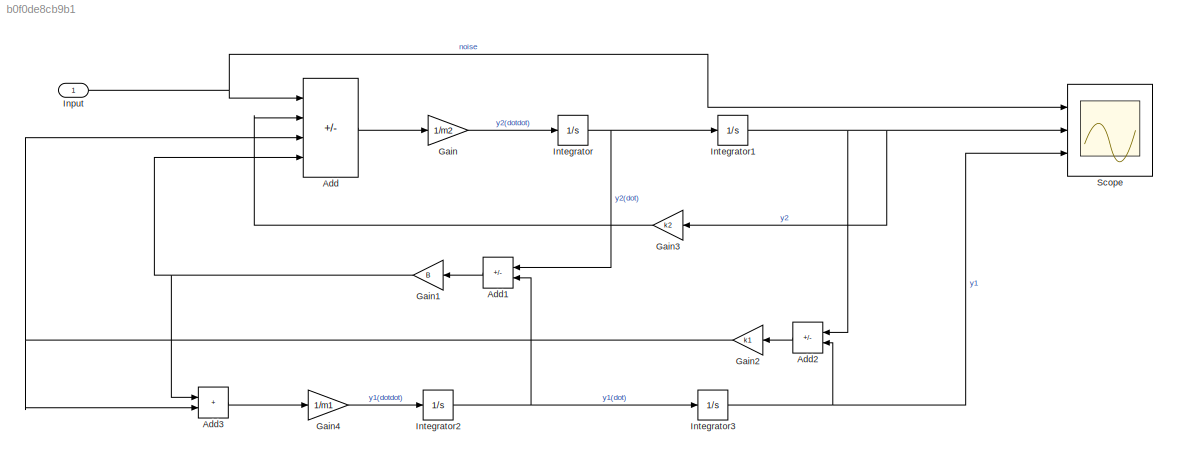
MODEL slx_b0f0de8cb9b1
KIND model
CONFIG AbsTol = auto
CONFIG EnableMultiTasking = off
CONFIG FixedStep = auto
CONFIG MaxStep = dt
CONFIG MinStep = auto
CONFIG RelTol = 1e-3
CONFIG SampleTimeConstraint = Unconstrained
CONFIG SolverName = VariableStepAuto
CONFIG StartTime = 0.0
CONFIG StopTime = 1
WORKSPACE source: mxarray member
WORKSPACE B: Simulink.Parameter (value not decoded)
WORKSPACE k1: Simulink.Parameter (value not decoded)
WORKSPACE k2: Simulink.Parameter (value not decoded)
WORKSPACE m1: Simulink.Parameter (value not decoded)
WORKSPACE m2: Simulink.Parameter (value not decoded)
BLOCK [Sum] Add
  IconShape = rectangular
  Inputs = +---
  Ports = [4, 1]
BLOCK [Sum] Add1
  IconShape = rectangular
  Inputs = +-
  Ports = [2, 1]
BLOCK [Sum] Add2
  IconShape = rectangular
  Inputs = +-
  Ports = [2, 1]
BLOCK [Sum] Add3
  IconShape = rectangular
  Ports = [2, 1]
BLOCK [Gain] Gain
  Gain = 1/m2
BLOCK [Gain] Gain1
  Gain = B
BLOCK [Gain] Gain2
  Gain = k1
BLOCK [Gain] Gain3
  Gain = k2
BLOCK [Gain] Gain4
  Gain = 1/m1
BLOCK [Inport] Input
  Interpolate = off
BLOCK [Integrator] Integrator
  Ports = [1, 1]
BLOCK [Integrator] Integrator1
  Ports = [1, 1]
BLOCK [Integrator] Integrator2
  Ports = [1, 1]
BLOCK [Integrator] Integrator3
  Ports = [1, 1]
BLOCK [Scope] Scope
  Floating = off
  NumInputPorts = 3
  Ports = [3]
  ScopeSpecificationString = Simulink.scopes.TimeScopeBlockCfg('CurrentConfiguration', extmgr.ConfigurationSet(extmgr.Configuration('Core','General UI',true),extmgr.Configuration('Core','Source UI',true),extmgr.Configuration('Sources','WiredSimulink',true),extmgr.Configuration('Visuals','Time Domain',true,'SerializedDisplays',{struct('MinYLimReal','-1.37438','MaxYLimReal','1.37438','YLabelReal','','MinYLimMag','0.00000','MaxY...<+2727ch>
LINE Add1:1 -> Gain1:1
LINE Add2:1 -> Gain2:1
LINE Add3:1 -> Gain4:1
LINE Add:1 -> Gain:1
NET Gain1:1 -> Add3:1, Add:4
NET Gain2:1 -> Add3:2, Add:3
LINE Gain3:1 -> Add:2
LINE Gain4:1 -> Integrator2:1
LINE Gain:1 -> Integrator:1
NET Input:1 -> Add:1, Scope:1
NET Integrator1:1 -> Add2:1, Gain3:1, Scope:2
NET Integrator2:1 -> Add1:2, Integrator3:1
NET Integrator3:1 -> Add2:2, Scope:3
NET Integrator:1 -> Add1:1, Integrator1:1
note: NET lines group one-source signal fan-out (src -> all destinations, sorted); 1:1 wires keep LINE
